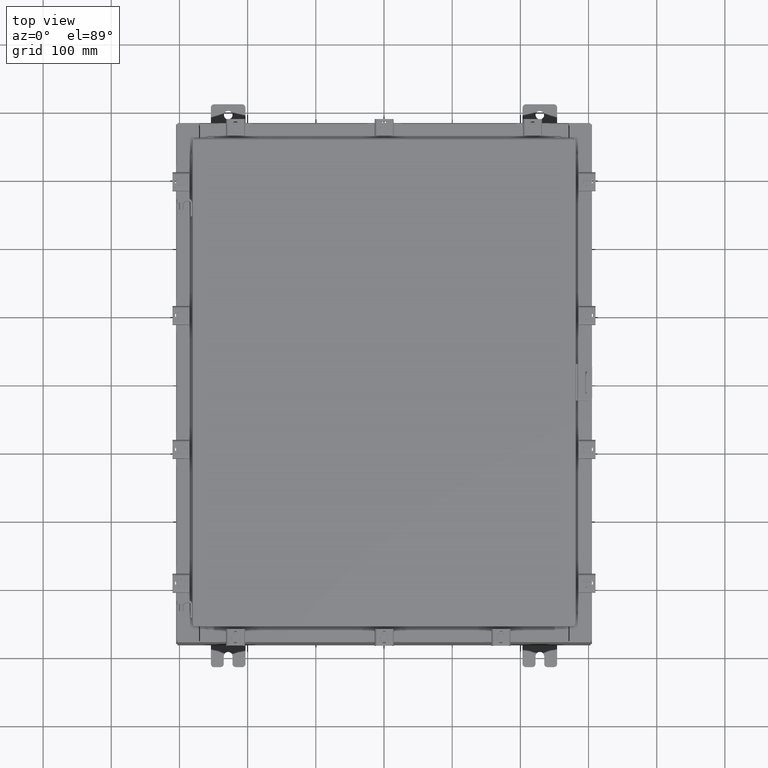
[diagram: clean part render]
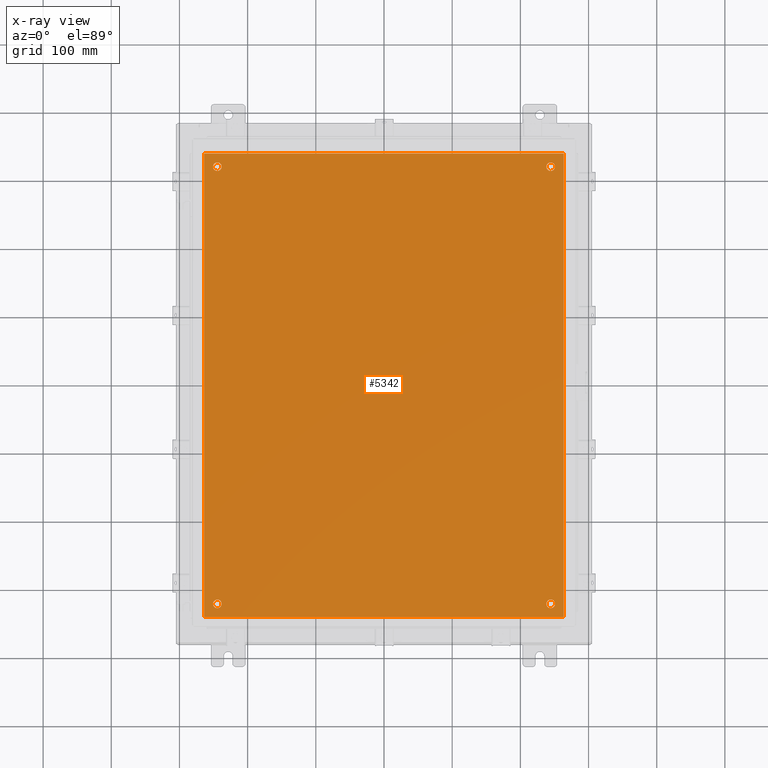
[diagram: x-ray — body ghosted, one internal face saturated and labeled with its STEP entity id]
A machine part, top view, then the same camera in x-ray: the body is ghosted and one INTERNAL B-rep face — a face not visible from any outside direction — is saturated and labeled: STEP entity #5342.
In plain terms, the highlighted planar face has unit normal (0, 0, -1).
Its self-contained STEP definition (entity closure, byte-faithful):
#60 = CARTESIAN_POINT ( 'NONE',  ( -9.625000000000007100, 12.62500000000000000, -0.1039999999999999800 ) ) ;
#308 = CARTESIAN_POINT ( 'NONE',  ( 9.875000000000007100, -12.62500000000000000, -0.1039999999999999800 ) ) ;
#325 = DIRECTION ( 'NONE',  ( -0.0000000000000000000, -0.0000000000000000000, 1.000000000000000000 ) ) ;
#356 = VECTOR ( 'NONE', #4707, 39.37007874015748100 ) ;
#679 = DIRECTION ( 'NONE',  ( -1.000000000000000000, 0.0000000000000000000, 0.0000000000000000000 ) ) ;
#899 = EDGE_CURVE ( 'NONE', #17173, #18242, #2187, .T. ) ;
#1168 = CARTESIAN_POINT ( 'NONE',  ( 9.625000000000007100, -12.62500000000000000, -0.1039999999999999800 ) ) ;
#1509 = DIRECTION ( 'NONE',  ( 0.0000000000000000000, 1.000000000000000000, 0.0000000000000000000 ) ) ;
#1526 = AXIS2_PLACEMENT_3D ( 'NONE', #60, #12640, #1908 ) ;
#1568 = CARTESIAN_POINT ( 'NONE',  ( 10.50000000000000400, 13.38299999999999900, -0.1040000000000009100 ) ) ;
#1693 = EDGE_LOOP ( 'NONE', ( #17084, #18259 ) ) ;
#1908 = DIRECTION ( 'NONE',  ( -1.000000000000000000, 0.0000000000000000000, 0.0000000000000000000 ) ) ;
#2157 = ORIENTED_EDGE ( 'NONE', *, *, #17474, .F. ) ;
#2187 = CIRCLE ( 'NONE', #17924, 0.2499999999999998100 ) ;
#2579 = FACE_BOUND ( 'NONE', #14876, .T. ) ;
#2823 = CARTESIAN_POINT ( 'NONE',  ( -10.38300000000000100, -13.38299999999999900, -0.1040000000000009100 ) ) ;
#3156 = LINE ( 'NONE', #15786, #7326 ) ;
#3280 = CARTESIAN_POINT ( 'NONE',  ( -10.38300000000000100, 13.38299999999999700, -0.1040000000000020100 ) ) ;
#3285 = ORIENTED_EDGE ( 'NONE', *, *, #9816, .T. ) ;
#3469 = VERTEX_POINT ( 'NONE', #18563 ) ;
#3625 = DIRECTION ( 'NONE',  ( -1.000000000000000000, 0.0000000000000000000, -0.0000000000000000000 ) ) ;
#4337 = VECTOR ( 'NONE', #10512, 39.37007874015748100 ) ;
#4455 = CARTESIAN_POINT ( 'NONE',  ( 10.38300000000000100, 13.38299999999999700, -0.1040000000000009100 ) ) ;
#4521 = CIRCLE ( 'NONE', #1526, 0.2500000000000008900 ) ;
#4707 = DIRECTION ( 'NONE',  ( 1.000000000000000000, -0.0000000000000000000, -0.0000000000000000000 ) ) ;
#5342 = ADVANCED_FACE ( 'NONE', ( #7356, #16296, #2579, #11540, #6812 ), #23127, .T. ) ;
#5931 = EDGE_LOOP ( 'NONE', ( #2157, #15696, #14127, #13480 ) ) ;
#6068 = CARTESIAN_POINT ( 'NONE',  ( 9.625000000000007100, -12.62500000000000000, -0.1039999999999999800 ) ) ;
#6161 = CARTESIAN_POINT ( 'NONE',  ( -9.625000000000007100, -12.62500000000000000, -0.1039999999999999800 ) ) ;
#6391 = EDGE_CURVE ( 'NONE', #22605, #22598, #21306, .T. ) ;
#6781 = DIRECTION ( 'NONE',  ( -1.000000000000000000, 0.0000000000000000000, 0.0000000000000000000 ) ) ;
#6812 = FACE_OUTER_BOUND ( 'NONE', #5931, .T. ) ;
#6946 = DIRECTION ( 'NONE',  ( -0.0000000000000000000, -0.0000000000000000000, 1.000000000000000000 ) ) ;
#7211 = CIRCLE ( 'NONE', #8905, 0.2500000000000008900 ) ;
#7270 = AXIS2_PLACEMENT_3D ( 'NONE', #22106, #11451, #679 ) ;
#7326 = VECTOR ( 'NONE', #1509, 39.37007874015748100 ) ;
#7356 = FACE_BOUND ( 'NONE', #19046, .T. ) ;
#7827 = DIRECTION ( 'NONE',  ( -1.000000000000000000, 0.0000000000000000000, 0.0000000000000000000 ) ) ;
#7864 = VERTEX_POINT ( 'NONE', #20584 ) ;
#7946 = DIRECTION ( 'NONE',  ( -1.000000000000000000, 0.0000000000000000000, 0.0000000000000000000 ) ) ;
#8156 = CIRCLE ( 'NONE', #22501, 0.2500000000000008900 ) ;
#8297 = EDGE_CURVE ( 'NONE', #7864, #17693, #10145, .T. ) ;
#8482 = ORIENTED_EDGE ( 'NONE', *, *, #899, .T. ) ;
#8643 = EDGE_CURVE ( 'NONE', #14943, #22605, #22130, .T. ) ;
#8905 = AXIS2_PLACEMENT_3D ( 'NONE', #11105, #325, #12885 ) ;
#9075 = CARTESIAN_POINT ( 'NONE',  ( -9.625000000000007100, 12.62500000000000000, -0.1039999999999999800 ) ) ;
#9814 = EDGE_CURVE ( 'NONE', #18232, #14943, #3156, .T. ) ;
#9816 = EDGE_CURVE ( 'NONE', #17693, #7864, #20992, .T. ) ;
#9926 = LINE ( 'NONE', #20747, #356 ) ;
#10094 = EDGE_CURVE ( 'NONE', #3469, #17190, #8156, .T. ) ;
#10145 = CIRCLE ( 'NONE', #7270, 0.2499999999999998100 ) ;
#10512 = DIRECTION ( 'NONE',  ( -1.000000000000000000, -0.0000000000000000000, -0.0000000000000000000 ) ) ;
#10860 = DIRECTION ( 'NONE',  ( -1.000000000000000000, 0.0000000000000000000, 0.0000000000000000000 ) ) ;
#11105 = CARTESIAN_POINT ( 'NONE',  ( -9.625000000000007100, -12.62500000000000000, -0.1039999999999999800 ) ) ;
#11172 = CARTESIAN_POINT ( 'NONE',  ( -9.375000000000007100, 12.62500000000000000, -0.1039999999999999800 ) ) ;
#11400 = AXIS2_PLACEMENT_3D ( 'NONE', #12508, #14283, #3625 ) ;
#11451 = DIRECTION ( 'NONE',  ( -0.0000000000000000000, -0.0000000000000000000, 1.000000000000000000 ) ) ;
#11540 = FACE_BOUND ( 'NONE', #1693, .T. ) ;
#12079 = CIRCLE ( 'NONE', #12739, 0.2500000000000008900 ) ;
#12508 = CARTESIAN_POINT ( 'NONE',  ( 0.0000000000000000000, 0.0000000000000000000, -0.1039999999999999800 ) ) ;
#12640 = DIRECTION ( 'NONE',  ( -0.0000000000000000000, -0.0000000000000000000, 1.000000000000000000 ) ) ;
#12739 = AXIS2_PLACEMENT_3D ( 'NONE', #6161, #18648, #7946 ) ;
#12885 = DIRECTION ( 'NONE',  ( -1.000000000000000000, 0.0000000000000000000, 0.0000000000000000000 ) ) ;
#13480 = ORIENTED_EDGE ( 'NONE', *, *, #9814, .F. ) ;
#13598 = CARTESIAN_POINT ( 'NONE',  ( -10.38300000000000100, 13.38299999999999700, -0.1040000000000020100 ) ) ;
#14127 = ORIENTED_EDGE ( 'NONE', *, *, #8643, .F. ) ;
#14283 = DIRECTION ( 'NONE',  ( 0.0000000000000000000, 0.0000000000000000000, -1.000000000000000000 ) ) ;
#14876 = EDGE_LOOP ( 'NONE', ( #21480, #3285 ) ) ;
#14943 = VERTEX_POINT ( 'NONE', #4455 ) ;
#15436 = CARTESIAN_POINT ( 'NONE',  ( -9.875000000000007100, -12.62500000000000000, -0.1039999999999999800 ) ) ;
#15696 = ORIENTED_EDGE ( 'NONE', *, *, #6391, .F. ) ;
#15750 = DIRECTION ( 'NONE',  ( 0.0000000000000000000, -1.000000000000000000, 0.0000000000000000000 ) ) ;
#15786 = CARTESIAN_POINT ( 'NONE',  ( 10.38300000000000100, -13.38299999999999700, -0.1040000000000009100 ) ) ;
#15948 = CIRCLE ( 'NONE', #16240, 0.2499999999999998100 ) ;
#16080 = EDGE_CURVE ( 'NONE', #20149, #18941, #7211, .T. ) ;
#16240 = AXIS2_PLACEMENT_3D ( 'NONE', #6068, #18541, #7827 ) ;
#16296 = FACE_BOUND ( 'NONE', #18523, .T. ) ;
#17084 = ORIENTED_EDGE ( 'NONE', *, *, #21710, .T. ) ;
#17125 = VECTOR ( 'NONE', #15750, 39.37007874015748100 ) ;
#17173 = VERTEX_POINT ( 'NONE', #308 ) ;
#17190 = VERTEX_POINT ( 'NONE', #11172 ) ;
#17474 = EDGE_CURVE ( 'NONE', #22598, #18232, #9926, .T. ) ;
#17647 = CARTESIAN_POINT ( 'NONE',  ( 9.625000000000007100, 12.62500000000000000, -0.1039999999999999800 ) ) ;
#17693 = VERTEX_POINT ( 'NONE', #17727 ) ;
#17727 = CARTESIAN_POINT ( 'NONE',  ( 9.375000000000007100, 12.62500000000000000, -0.1039999999999999800 ) ) ;
#17924 = AXIS2_PLACEMENT_3D ( 'NONE', #1168, #20569, #6781 ) ;
#18232 = VERTEX_POINT ( 'NONE', #21195 ) ;
#18242 = VERTEX_POINT ( 'NONE', #19428 ) ;
#18259 = ORIENTED_EDGE ( 'NONE', *, *, #10094, .T. ) ;
#18523 = EDGE_LOOP ( 'NONE', ( #8482, #21975 ) ) ;
#18541 = DIRECTION ( 'NONE',  ( -0.0000000000000000000, -0.0000000000000000000, 1.000000000000000000 ) ) ;
#18563 = CARTESIAN_POINT ( 'NONE',  ( -9.875000000000007100, 12.62500000000000000, -0.1039999999999999800 ) ) ;
#18648 = DIRECTION ( 'NONE',  ( -0.0000000000000000000, -0.0000000000000000000, 1.000000000000000000 ) ) ;
#18941 = VERTEX_POINT ( 'NONE', #23072 ) ;
#19046 = EDGE_LOOP ( 'NONE', ( #22145, #21561 ) ) ;
#19428 = CARTESIAN_POINT ( 'NONE',  ( 9.375000000000007100, -12.62500000000000000, -0.1039999999999999800 ) ) ;
#19445 = DIRECTION ( 'NONE',  ( -1.000000000000000000, 0.0000000000000000000, 0.0000000000000000000 ) ) ;
#19981 = EDGE_CURVE ( 'NONE', #18941, #20149, #12079, .T. ) ;
#20149 = VERTEX_POINT ( 'NONE', #15436 ) ;
#20569 = DIRECTION ( 'NONE',  ( -0.0000000000000000000, -0.0000000000000000000, 1.000000000000000000 ) ) ;
#20584 = CARTESIAN_POINT ( 'NONE',  ( 9.875000000000007100, 12.62500000000000000, -0.1039999999999999800 ) ) ;
#20747 = CARTESIAN_POINT ( 'NONE',  ( -10.50000000000000200, -13.38299999999999900, -0.1040000000000009100 ) ) ;
#20992 = CIRCLE ( 'NONE', #21775, 0.2499999999999998100 ) ;
#21195 = CARTESIAN_POINT ( 'NONE',  ( 10.38300000000000100, -13.38299999999999700, -0.1040000000000009100 ) ) ;
#21306 = LINE ( 'NONE', #3280, #17125 ) ;
#21480 = ORIENTED_EDGE ( 'NONE', *, *, #8297, .T. ) ;
#21541 = DIRECTION ( 'NONE',  ( -0.0000000000000000000, -0.0000000000000000000, 1.000000000000000000 ) ) ;
#21561 = ORIENTED_EDGE ( 'NONE', *, *, #16080, .T. ) ;
#21710 = EDGE_CURVE ( 'NONE', #17190, #3469, #4521, .T. ) ;
#21775 = AXIS2_PLACEMENT_3D ( 'NONE', #17647, #6946, #19445 ) ;
#21975 = ORIENTED_EDGE ( 'NONE', *, *, #22433, .T. ) ;
#22106 = CARTESIAN_POINT ( 'NONE',  ( 9.625000000000007100, 12.62500000000000000, -0.1039999999999999800 ) ) ;
#22130 = LINE ( 'NONE', #1568, #4337 ) ;
#22145 = ORIENTED_EDGE ( 'NONE', *, *, #19981, .T. ) ;
#22433 = EDGE_CURVE ( 'NONE', #18242, #17173, #15948, .T. ) ;
#22501 = AXIS2_PLACEMENT_3D ( 'NONE', #9075, #21541, #10860 ) ;
#22598 = VERTEX_POINT ( 'NONE', #2823 ) ;
#22605 = VERTEX_POINT ( 'NONE', #13598 ) ;
#23072 = CARTESIAN_POINT ( 'NONE',  ( -9.375000000000007100, -12.62500000000000000, -0.1039999999999999800 ) ) ;
#23127 = PLANE ( 'NONE',  #11400 ) ;